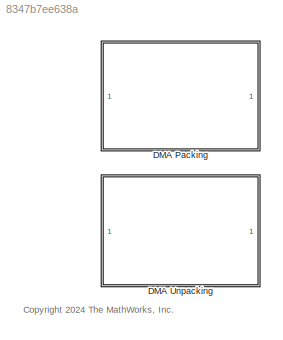
MODEL slx_8347b7ee638a
KIND library
CONFIG AbsTol = auto
CONFIG EnableMultiTasking = off
CONFIG FixedStep = auto
CONFIG MaxStep = auto
CONFIG MinStep = auto
CONFIG RelTol = 1e-3
CONFIG SampleTimeConstraint = Unconstrained
CONFIG SolverName = VariableStepAuto
CONFIG StartTime = 0.0
CONFIG StopTime = 10.0
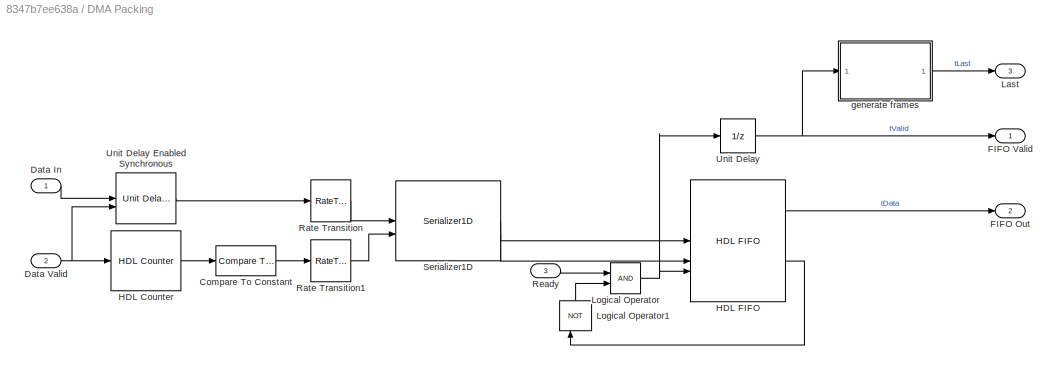
BLOCK [SubSystem] DMA Packing
BLOCK [Reference] DMA Packing/Compare To Constant  REF=simulink/Logic and Bit
Operations/Compare
To Constant
  SourceBlock = simulink/Logic and Bit\nOperations/Compare\nTo Constant
  SourceType = Compare To Constant
BLOCK [Inport] DMA Packing/Data In
  OutDataTypeStr = uint32
BLOCK [Inport] DMA Packing/Data Valid
  Port = 2
BLOCK [Outport] DMA Packing/FIFO Out
  Port = 2
BLOCK [Outport] DMA Packing/FIFO Valid
BLOCK [Reference] DMA Packing/HDL Counter  REF=hdlsllib/Sources/HDL Counter
  SourceBlock = hdlsllib/Sources/HDL Counter
  SourceType = HDL Counter
BLOCK [Reference] DMA Packing/HDL FIFO  REF=hdlsllib/HDL RAMs/HDL FIFO
  SourceBlock = hdlsllib/HDL RAMs/HDL FIFO
  SourceType = HDL_FIFO
BLOCK [Outport] DMA Packing/Last
  Port = 3
BLOCK [Logic] DMA Packing/Logical Operator
  AllPortsSameDT = off
  OutDataTypeStr = boolean
BLOCK [Logic] DMA Packing/Logical Operator1
  AllPortsSameDT = off
  IconShape = distinctive
  Operator = NOT
  OutDataTypeStr = boolean
BLOCK [RateTransition] DMA Packing/Rate Transition
  OutPortSampleTimeMultiple = timeFactor
  OutPortSampleTimeOpt = Multiple of input port sample time
BLOCK [RateTransition] DMA Packing/Rate Transition1
  OutPortSampleTimeMultiple = timeFactor
  OutPortSampleTimeOpt = Multiple of input port sample time
BLOCK [Inport] DMA Packing/Ready
  Port = 3
BLOCK [Reference] DMA Packing/Serializer1D  REF=hdlsllib/HDL Operations/Serializer1D
  SourceBlock = hdlsllib/HDL Operations/Serializer1D
  SourceType = Serializer1D
BLOCK [UnitDelay] DMA Packing/Unit Delay
  HasFrameUpgradeWarning = on
  SampleTime = -1
BLOCK [Reference] DMA Packing/Unit Delay Enabled Synchronous  REF=hdlsllib/Discrete/Unit Delay Enabled
Synchronous
  SourceBlock = hdlsllib/Discrete/Unit Delay Enabled\nSynchronous
  SourceType = Unit Delay Enabled Synchronous
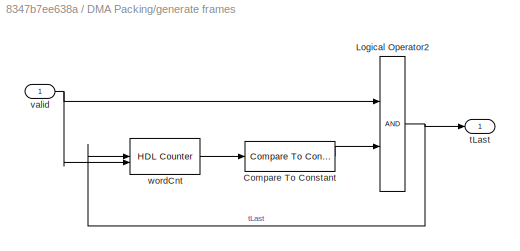
BLOCK [SubSystem] DMA Packing/generate frames
BLOCK [Reference] DMA Packing/generate frames/Compare To Constant  REF=simulink/Logic and Bit
Operations/Compare
To Constant
  SourceBlock = simulink/Logic and Bit\nOperations/Compare\nTo Constant
  SourceType = Compare To Constant
BLOCK [Logic] DMA Packing/generate frames/Logical Operator2
  AllPortsSameDT = off
  OutDataTypeStr = boolean
BLOCK [Outport] DMA Packing/generate frames/tLast
  VectorParamsAs1DForOutWhenUnconnected = off
BLOCK [Inport] DMA Packing/generate frames/valid
BLOCK [Reference] DMA Packing/generate frames/wordCnt  REF=hdlsllib/Sources/HDL Counter
  SourceBlock = hdlsllib/Sources/HDL Counter
  SourceType = HDL Counter
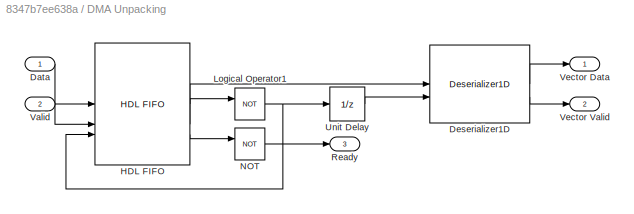
BLOCK [SubSystem] DMA Unpacking
BLOCK [Inport] DMA Unpacking/Data
  OutDataTypeStr = uint32
BLOCK [Reference] DMA Unpacking/Deserializer1D  REF=hdlsllib/HDL Operations/Deserializer1D
  SourceBlock = hdlsllib/HDL Operations/Deserializer1D
  SourceType = Deserializer1D
BLOCK [Reference] DMA Unpacking/HDL FIFO  REF=hdlsllib/HDL RAMs/HDL FIFO
  SourceBlock = hdlsllib/HDL RAMs/HDL FIFO
  SourceType = HDL_FIFO
BLOCK [Logic] DMA Unpacking/Logical Operator1
  AllPortsSameDT = off
  IconShape = distinctive
  NameLocation = left
  Operator = NOT
  OutDataTypeStr = boolean
BLOCK [Logic] DMA Unpacking/NOT
  AllPortsSameDT = off
  IconShape = distinctive
  Operator = NOT
  OutDataTypeStr = boolean
BLOCK [Outport] DMA Unpacking/Ready
  Port = 3
BLOCK [UnitDelay] DMA Unpacking/Unit Delay
  HasFrameUpgradeWarning = on
  SampleTime = -1
BLOCK [Inport] DMA Unpacking/Valid
  Port = 2
BLOCK [Outport] DMA Unpacking/Vector Data
BLOCK [Outport] DMA Unpacking/Vector Valid
  Port = 2
ANNOTATION (root): <copyright redacted>
LINE DMA Packing/Compare To Constant:1 -> DMA Packing/Rate Transition1:1
LINE DMA Packing/Data In:1 -> DMA Packing/Unit Delay Enabled Synchronous:1
NET DMA Packing/Data Valid:1 -> DMA Packing/HDL Counter:1, DMA Packing/Unit Delay Enabled Synchronous:2
LINE DMA Packing/HDL Counter:1 -> DMA Packing/Compare To Constant:1
LINE DMA Packing/HDL FIFO:1 -> DMA Packing/FIFO Out:1
LINE DMA Packing/HDL FIFO:2 -> DMA Packing/Logical Operator1:1
LINE DMA Packing/Logical Operator1:1 -> DMA Packing/Logical Operator:2
NET DMA Packing/Logical Operator:1 -> DMA Packing/HDL FIFO:3, DMA Packing/Unit Delay:1
LINE DMA Packing/Rate Transition1:1 -> DMA Packing/Serializer1D:2
LINE DMA Packing/Rate Transition:1 -> DMA Packing/Serializer1D:1
LINE DMA Packing/Ready:1 -> DMA Packing/Logical Operator:1
LINE DMA Packing/Serializer1D:1 -> DMA Packing/HDL FIFO:1
LINE DMA Packing/Serializer1D:2 -> DMA Packing/HDL FIFO:2
LINE DMA Packing/Unit Delay Enabled Synchronous:1 -> DMA Packing/Rate Transition:1
NET DMA Packing/Unit Delay:1 -> DMA Packing/FIFO Valid:1, DMA Packing/generate frames:1
LINE DMA Packing/generate frames/Compare To Constant:1 -> DMA Packing/generate frames/Logical Operator2:2
NET DMA Packing/generate frames/Logical Operator2:1 -> DMA Packing/generate frames/tLast:1, DMA Packing/generate frames/wordCnt:1
NET DMA Packing/generate frames/valid:1 -> DMA Packing/generate frames/Logical Operator2:1, DMA Packing/generate frames/wordCnt:2
LINE DMA Packing/generate frames/wordCnt:1 -> DMA Packing/generate frames/Compare To Constant:1
LINE DMA Packing/generate frames:1 -> DMA Packing/Last:1
LINE DMA Unpacking/Data:1 -> DMA Unpacking/HDL FIFO:1
LINE DMA Unpacking/Deserializer1D:1 -> DMA Unpacking/Vector Data:1
LINE DMA Unpacking/Deserializer1D:2 -> DMA Unpacking/Vector Valid:1
LINE DMA Unpacking/HDL FIFO:1 -> DMA Unpacking/Deserializer1D:1
LINE DMA Unpacking/HDL FIFO:2 -> DMA Unpacking/Logical Operator1:1
LINE DMA Unpacking/HDL FIFO:3 -> DMA Unpacking/NOT:1
NET DMA Unpacking/Logical Operator1:1 -> DMA Unpacking/HDL FIFO:3, DMA Unpacking/Unit Delay:1
LINE DMA Unpacking/NOT:1 -> DMA Unpacking/Ready:1
LINE DMA Unpacking/Unit Delay:1 -> DMA Unpacking/Deserializer1D:2
LINE DMA Unpacking/Valid:1 -> DMA Unpacking/HDL FIFO:2
note: NET lines group one-source signal fan-out (src -> all destinations, sorted); 1:1 wires keep LINE
